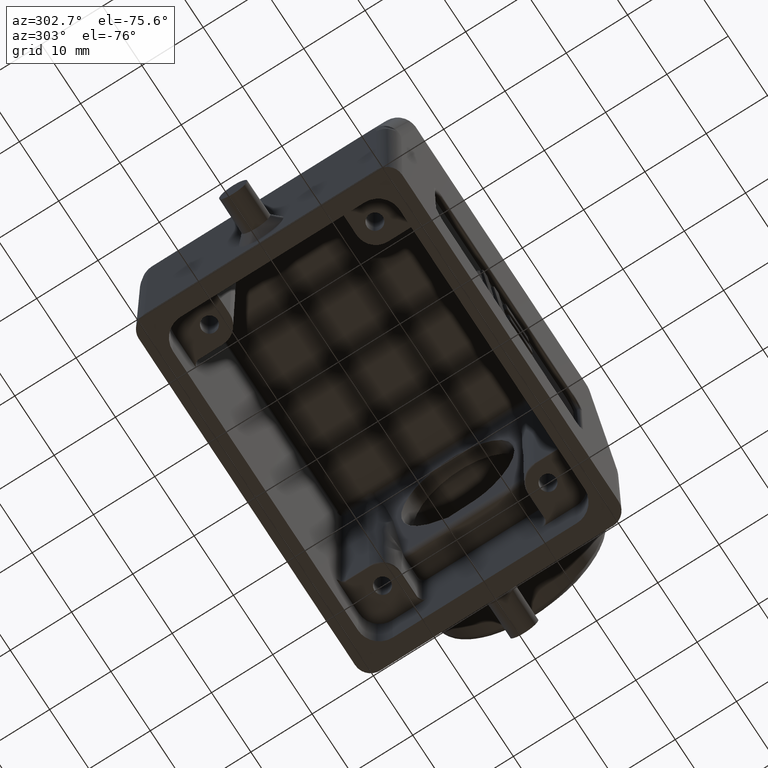
[diagram: clean part render]
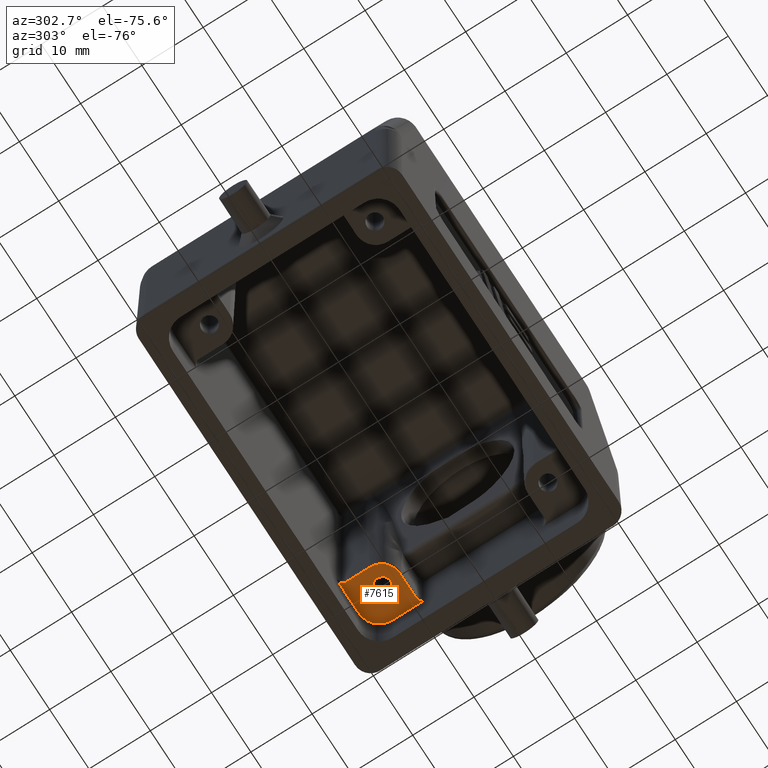
[diagram: same view with one face highlighted and labeled with its STEP entity id]
A machine part, auxiliary view. The second image highlights one B-rep face of the part: STEP entity #7615.
In plain terms, the highlighted planar face has unit normal (0, 0, 1).
Its self-contained STEP definition (entity closure, byte-faithful):
#33 = AXIS2_PLACEMENT_3D ( 'NONE', #4310, #9548, #5255 ) ;
#53 = CARTESIAN_POINT ( 'NONE',  ( 2.222746750265350624, 0.4119923427606958510, 0.3543307086614170265 ) ) ;
#150 = VERTEX_POINT ( 'NONE', #1159 ) ;
#184 = CARTESIAN_POINT ( 'NONE',  ( 2.226577766184540952, 0.4103600307984166529, 0.3543307086614169710 ) ) ;
#245 = CARTESIAN_POINT ( 'NONE',  ( 2.228098873747625941, 0.4095931139183455194, 0.3543307086614168044 ) ) ;
#278 = CARTESIAN_POINT ( 'NONE',  ( 1.913261825916702463, 0.7193473442993824074, 0.3543307086614173596 ) ) ;
#345 = CARTESIAN_POINT ( 'NONE',  ( 1.916959031377389433, 0.7159322652222851469, 0.3543307086614173596 ) ) ;
#412 = DIRECTION ( 'NONE',  ( -0.000000000000000000, -1.000000000000000000, -0.000000000000000000 ) ) ;
#482 = VECTOR ( 'NONE', #412, 39.37007874015748143 ) ;
#647 = ORIENTED_EDGE ( 'NONE', *, *, #3742, .T. ) ;
#876 = VERTEX_POINT ( 'NONE', #4266 ) ;
#911 = DIRECTION ( 'NONE',  ( 1.000000000000000000, 0.000000000000000000, -0.000000000000000000 ) ) ;
#1007 = LINE ( 'NONE', #5342, #2416 ) ;
#1044 = CARTESIAN_POINT ( 'NONE',  ( 2.228482516101051303, 0.4093902889651612753, 0.3543307086614167489 ) ) ;
#1130 = CARTESIAN_POINT ( 'NONE',  ( 2.115258537622013435, 0.7221435996659171241, 0.3543307086614173040 ) ) ;
#1159 = CARTESIAN_POINT ( 'NONE',  ( 2.003937007874015741, 0.5314960629921260393, 0.3543307086614173596 ) ) ;
#1244 = CARTESIAN_POINT ( 'NONE',  ( 2.219381957891374046, 0.4131526393752047999, 0.3543307086614173040 ) ) ;
#1269 = CARTESIAN_POINT ( 'NONE',  ( 1.915759903604837389, 0.7171056213606479268, 0.3543307086614173040 ) ) ;
#1327 = ORIENTED_EDGE ( 'NONE', *, *, #10290, .T. ) ;
#1482 = EDGE_CURVE ( 'NONE', #2103, #150, #11786, .T. ) ;
#1550 = EDGE_LOOP ( 'NONE', ( #3565, #2565 ) ) ;
#1874 = AXIS2_PLACEMENT_3D ( 'NONE', #7776, #12794, #7847 ) ;
#1903 = CARTESIAN_POINT ( 'NONE',  ( 2.115258537622013435, 0.7221435996659171241, 0.3543307086614173040 ) ) ;
#1949 = CARTESIAN_POINT ( 'NONE',  ( 2.165354330708634034, 0.4149387349712283513, 0.3543307086614173596 ) ) ;
#2103 = VERTEX_POINT ( 'NONE', #9829 ) ;
#2416 = VECTOR ( 'NONE', #10365, 39.37007874015748143 ) ;
#2418 = CARTESIAN_POINT ( 'NONE',  ( 2.245765646910007796, 0.3936102181142485112, 0.3543307086614164159 ) ) ;
#2506 = VERTEX_POINT ( 'NONE', #2418 ) ;
#2509 = DIRECTION ( 'NONE',  ( 1.000000000000000000, 0.000000000000000000, -0.000000000000000000 ) ) ;
#2530 = CARTESIAN_POINT ( 'NONE',  ( 1.924682139300454287, 0.7057052883777521490, 0.3543307086614175816 ) ) ;
#2565 = ORIENTED_EDGE ( 'NONE', *, *, #13214, .F. ) ;
#2875 = CARTESIAN_POINT ( 'NONE',  ( 1.930686766467291093, 0.5314960629921259283, 0.3543307086614173596 ) ) ;
#2908 = FACE_BOUND ( 'NONE', #1550, .T. ) ;
#3115 = CARTESIAN_POINT ( 'NONE',  ( 2.047244094488189337, 0.4149387349712282957, 0.3543307086614173596 ) ) ;
#3169 = CARTESIAN_POINT ( 'NONE',  ( 2.236072294070195365, 0.4052920077817760980, 0.3543307086614157497 ) ) ;
#3193 = CARTESIAN_POINT ( 'NONE',  ( 2.245765646313621300, 0.6257164349175067253, 0.3543307086618484592 ) ) ;
#3232 = CARTESIAN_POINT ( 'NONE',  ( 2.206266521651563117, 0.4149387349712283513, 0.3543307086614173596 ) ) ;
#3261 = CARTESIAN_POINT ( 'NONE',  ( 1.930686766467291537, 0.6848205522798265221, 0.3543307086614173596 ) ) ;
#3328 = CARTESIAN_POINT ( 'NONE',  ( 1.919644094612497520, 0.7130716537874866034, 0.3543307086614174151 ) ) ;
#3396 = CARTESIAN_POINT ( 'NONE',  ( 1.929061414034992206, 0.6955742251762540018, 0.3543307086614173596 ) ) ;
#3471 = EDGE_CURVE ( 'NONE', #10145, #8260, #13110, .T. ) ;
#3565 = ORIENTED_EDGE ( 'NONE', *, *, #1482, .F. ) ;
#3624 = CARTESIAN_POINT ( 'NONE',  ( 2.047244094488189337, 0.4149387349712282957, 0.3543307086614173596 ) ) ;
#3742 = EDGE_CURVE ( 'NONE', #7768, #2506, #4683, .T. ) ;
#4179 = CARTESIAN_POINT ( 'NONE',  ( 2.208443322280972065, 0.4149387349712282402, 0.3543307086614173596 ) ) ;
#4266 = CARTESIAN_POINT ( 'NONE',  ( 2.206266521651563117, 0.4149387349712283513, 0.3543307086614173596 ) ) ;
#4310 = CARTESIAN_POINT ( 'NONE',  ( 2.055118110236220819, 0.5314960629921260393, 0.3543307086614173596 ) ) ;
#4405 = CARTESIAN_POINT ( 'NONE',  ( 1.917545794187383468, 0.7153327795891133434, 0.3543307086614174151 ) ) ;
#4438 = CARTESIAN_POINT ( 'NONE',  ( 1.930686766467291093, 0.5314960629921259283, 0.3543307086614173596 ) ) ;
#4517 = LINE ( 'NONE', #6610, #10583 ) ;
#4548 = CARTESIAN_POINT ( 'NONE',  ( 2.245765646910007352, 0.000000000000000000, 0.3543307086614173596 ) ) ;
#4556 = EDGE_CURVE ( 'NONE', #8260, #5422, #1007, .T. ) ;
#4607 = CARTESIAN_POINT ( 'NONE',  ( 1.930563050129487257, 0.6879057396291075044, 0.3543307086614174151 ) ) ;
#4683 = LINE ( 'NONE', #4548, #482 ) ;
#4902 = VERTEX_POINT ( 'NONE', #1903 ) ;
#5120 = CARTESIAN_POINT ( 'NONE',  ( 2.241787064414151764, 0.3996762888290106841, 0.3543307086614146395 ) ) ;
#5184 = CARTESIAN_POINT ( 'NONE',  ( 2.211528845253297071, 0.4148148962236045678, 0.3543307086614174151 ) ) ;
#5208 = CARTESIAN_POINT ( 'NONE',  ( 2.149640749754236246, 0.7221435992427537309, 0.3543307086611773848 ) ) ;
#5253 = CARTESIAN_POINT ( 'NONE',  ( 2.245765646910007796, 0.3936102181142485112, 0.3543307086614164159 ) ) ;
#5255 = DIRECTION ( 'NONE',  ( 1.000000000000000000, 0.000000000000000000, 0.000000000000000000 ) ) ;
#5318 = CARTESIAN_POINT ( 'NONE',  ( 2.225679477015289454, 0.4107727130238276736, 0.3543307086614170820 ) ) ;
#5342 = CARTESIAN_POINT ( 'NONE',  ( 1.930686766467291537, 0.6102362204724094408, 0.3543307086614173596 ) ) ;
#5344 = CARTESIAN_POINT ( 'NONE',  ( 1.922121714978913820, 0.7098053315051372492, 0.3543307086614175261 ) ) ;
#5422 = VERTEX_POINT ( 'NONE', #4438 ) ;
#5546 = CARTESIAN_POINT ( 'NONE',  ( 1.918696072089387528, 0.7141144697228297700, 0.3543307086614173596 ) ) ;
#5625 = EDGE_CURVE ( 'NONE', #10214, #876, #11125, .T. ) ;
#6039 = EDGE_CURVE ( 'NONE', #4902, #7768, #7713, .T. ) ;
#6069 = DIRECTION ( 'NONE',  ( 0.000000000000000000, 0.000000000000000000, 1.000000000000000000 ) ) ;
#6293 = CARTESIAN_POINT ( 'NONE',  ( 2.245765646910007796, 0.5916364775873539372, 0.3543307086614174151 ) ) ;
#6360 = CARTESIAN_POINT ( 'NONE',  ( 1.909358249610310976, 0.7221435996659189005, 0.3543307086614173596 ) ) ;
#6502 =( BOUNDED_CURVE ( )  B_SPLINE_CURVE ( 3, ( #2875, #8733, #12812, #3624 ),
 .UNSPECIFIED., .F., .F. ) 
 B_SPLINE_CURVE_WITH_KNOTS ( ( 4, 4 ),
 ( 0.000000000000000000, 1.000000000000000000 ),
 .UNSPECIFIED. ) 
 CURVE ( )  GEOMETRIC_REPRESENTATION_ITEM ( )  RATIONAL_B_SPLINE_CURVE ( ( 1.000000000000000000, 0.8047378541243646044, 0.8047378541243646044, 1.000000000000000000 ) ) 
 REPRESENTATION_ITEM ( '' )  );
#6610 = CARTESIAN_POINT ( 'NONE',  ( 1.188976377952756014, 0.7221435996659211209, 0.3543307086614174151 ) ) ;
#6630 = CARTESIAN_POINT ( 'NONE',  ( 1.910958320618570738, 0.7210801419132479850, 0.3543307086614173596 ) ) ;
#6858 = ORIENTED_EDGE ( 'NONE', *, *, #6039, .T. ) ;
#6968 = EDGE_CURVE ( 'NONE', #5422, #10214, #6502, .T. ) ;
#7143 = CARTESIAN_POINT ( 'NONE',  ( 2.165354330708634034, 0.6102362204724094408, 0.3543307086614173596 ) ) ;
#7273 = CARTESIAN_POINT ( 'NONE',  ( 2.217280168313387367, 0.4136885409445940076, 0.3543307086614173040 ) ) ;
#7356 = CARTESIAN_POINT ( 'NONE',  ( 1.930686766467291537, 0.6826444744074724458, 0.3543307086614173596 ) ) ;
#7504 = CARTESIAN_POINT ( 'NONE',  ( 1.930686766467291537, 0.6826444744074724458, 0.3543307086614173596 ) ) ;
#7615 = ADVANCED_FACE ( 'NONE', ( #2908, #10072 ), #12083, .F. ) ;
#7661 = CIRCLE ( 'NONE', #1874, 0.05118110236220482778 ) ;
#7713 = B_SPLINE_CURVE_WITH_KNOTS ( 'NONE', 3,
 ( #1130, #5208, #9301, #12378, #3193, #6293 ),
 .UNSPECIFIED., .F., .F.,
 ( 4, 2, 4 ),
 ( 1.654777482394804961E-10, 0.002584255445362428506, 0.005168510725247108320 ),
 .UNSPECIFIED. ) ;
#7768 = VERTEX_POINT ( 'NONE', #9735 ) ;
#7773 = ORIENTED_EDGE ( 'NONE', *, *, #3471, .F. ) ;
#7776 = CARTESIAN_POINT ( 'NONE',  ( 2.055118110236220819, 0.5314960629921260393, 0.3543307086614173596 ) ) ;
#7847 = DIRECTION ( 'NONE',  ( 1.000000000000000000, 0.000000000000000000, 0.000000000000000000 ) ) ;
#8210 = VECTOR ( 'NONE', #12061, 39.37007874015748143 ) ;
#8260 = VERTEX_POINT ( 'NONE', #7356 ) ;
#8282 = CARTESIAN_POINT ( 'NONE',  ( 2.223903387783096264, 0.4115460857974815867, 0.3543307086614171930 ) ) ;
#8288 = CARTESIAN_POINT ( 'NONE',  ( 1.909358249610310976, 0.7221435996659189005, 0.3543307086614173596 ) ) ;
#8512 = CARTESIAN_POINT ( 'NONE',  ( 1.924271299706675542, 0.7064255132954284644, 0.3543307086614175816 ) ) ;
#8733 = CARTESIAN_POINT ( 'NONE',  ( 1.930686766467291093, 0.4632183610314534739, 0.3543307086614173040 ) ) ;
#8942 = ORIENTED_EDGE ( 'NONE', *, *, #12648, .F. ) ;
#9301 = CARTESIAN_POINT ( 'NONE',  ( 2.183285132130504014, 0.7077016731462228982, 0.3543307086617414892 ) ) ;
#9548 = DIRECTION ( 'NONE',  ( -0.000000000000000000, -0.000000000000000000, -1.000000000000000000 ) ) ;
#9631 = CARTESIAN_POINT ( 'NONE',  ( 1.923538868117990797, 0.7076412339142585939, 0.3543307086614175261 ) ) ;
#9698 = CARTESIAN_POINT ( 'NONE',  ( 1.927670056699289924, 0.7001718521377273685, 0.3543307086614173040 ) ) ;
#9735 = CARTESIAN_POINT ( 'NONE',  ( 2.245765646910007796, 0.5916364775873539372, 0.3543307086614174151 ) ) ;
#9810 = EDGE_LOOP ( 'NONE', ( #8942, #12830, #10639, #12819, #7773, #1327, #6858, #647 ) ) ;
#9829 = CARTESIAN_POINT ( 'NONE',  ( 2.106299212598425452, 0.5314960629921260393, 0.3543307086614173596 ) ) ;
#10072 = FACE_OUTER_BOUND ( 'NONE', #9810, .T. ) ;
#10145 = VERTEX_POINT ( 'NONE', #8288 ) ;
#10214 = VERTEX_POINT ( 'NONE', #3115 ) ;
#10290 = EDGE_CURVE ( 'NONE', #10145, #4902, #4517, .T. ) ;
#10365 = DIRECTION ( 'NONE',  ( 0.000000000000000000, -1.000000000000000000, -0.000000000000000000 ) ) ;
#10436 = CARTESIAN_POINT ( 'NONE',  ( 1.917959659556745411, 0.7148994590188565423, 0.3543307086614175816 ) ) ;
#10583 = VECTOR ( 'NONE', #2509, 39.37007874015748143 ) ;
#10639 = ORIENTED_EDGE ( 'NONE', *, *, #6968, .F. ) ;
#10753 = B_SPLINE_CURVE_WITH_KNOTS ( 'NONE', 3,
 ( #3232, #4179, #5184, #7273, #1244, #53, #8282, #5318, #184, #12355, #245, #1044, #3169, #5120, #5253 ),
 .UNSPECIFIED., .F., .F.,
 ( 4, 2, 2, 2, 1, 2, 2, 4 ),
 ( 0.000000000000000000, 0.2499999999999870659, 0.3749999999999724665, 0.4374999999999583111, 0.4687499999999445444, 0.4843749999999427125, 0.4999999999999408251, 1.000000000000000000 ),
 .UNSPECIFIED. ) ;
#11125 = LINE ( 'NONE', #1949, #8210 ) ;
#11709 = CARTESIAN_POINT ( 'NONE',  ( 1.923177704093577800, 0.7082100113539310238, 0.3543307086614174151 ) ) ;
#11786 = CIRCLE ( 'NONE', #33, 0.05118110236220482778 ) ;
#11859 = AXIS2_PLACEMENT_3D ( 'NONE', #7143, #6069, #911 ) ;
#12061 = DIRECTION ( 'NONE',  ( 1.000000000000000000, 0.000000000000000000, -0.000000000000000000 ) ) ;
#12083 = PLANE ( 'NONE',  #11859 ) ;
#12355 = CARTESIAN_POINT ( 'NONE',  ( 2.227488902687559946, 0.4099056234376592944, 0.3543307086614169710 ) ) ;
#12378 = CARTESIAN_POINT ( 'NONE',  ( 2.231361105095338360, 0.6595998904350808267, 0.3543307086610600898 ) ) ;
#12443 = CARTESIAN_POINT ( 'NONE',  ( 1.921454923968062722, 0.7107209821284916629, 0.3543307086614176371 ) ) ;
#12510 = CARTESIAN_POINT ( 'NONE',  ( 1.917794486111398466, 0.7150731464342255927, 0.3543307086614173596 ) ) ;
#12648 = EDGE_CURVE ( 'NONE', #876, #2506, #10753, .T. ) ;
#12713 = CARTESIAN_POINT ( 'NONE',  ( 1.918088138511039542, 0.7147630258663454361, 0.3543307086614174151 ) ) ;
#12794 = DIRECTION ( 'NONE',  ( -0.000000000000000000, -0.000000000000000000, -1.000000000000000000 ) ) ;
#12812 = CARTESIAN_POINT ( 'NONE',  ( 1.978966392527517382, 0.4149387349712279072, 0.3543307086614173040 ) ) ;
#12819 = ORIENTED_EDGE ( 'NONE', *, *, #4556, .F. ) ;
#12830 = ORIENTED_EDGE ( 'NONE', *, *, #5625, .F. ) ;
#13110 = B_SPLINE_CURVE_WITH_KNOTS ( 'NONE', 3,
 ( #6360, #6630, #278, #1269, #345, #4405, #12510, #10436, #12713, #5546, #3328, #12443, #5344, #11709, #9631, #8512, #2530, #9698, #3396, #4607, #3261, #7504 ),
 .UNSPECIFIED., .F., .F.,
 ( 4, 1, 1, 1, 1, 2, 2, 2, 2, 2, 2, 2, 4 ),
 ( 0.000000000000000000, 0.1250000000002026712, 0.1875000000002972067, 0.2187500000003380074, 0.2343750000003521350, 0.2421875000003592127, 0.2500000000003662626, 0.3750000000003174683, 0.4375000000002877698, 0.4687500000002701728, 0.5000000000002525757, 0.7500000000001263434, 1.000000000000000000 ),
 .UNSPECIFIED. ) ;
#13214 = EDGE_CURVE ( 'NONE', #150, #2103, #7661, .T. ) ;